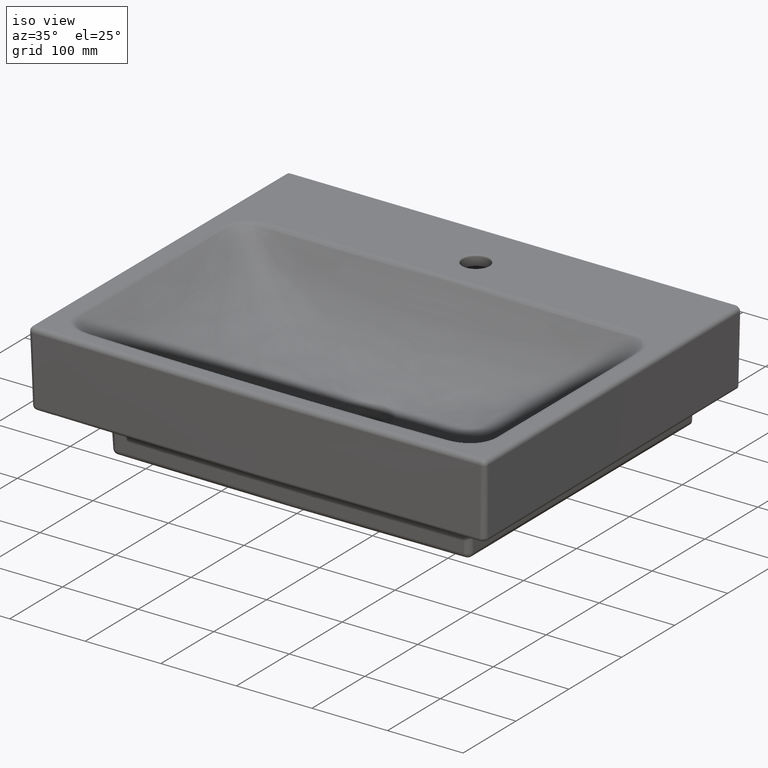
[diagram: clean part render]
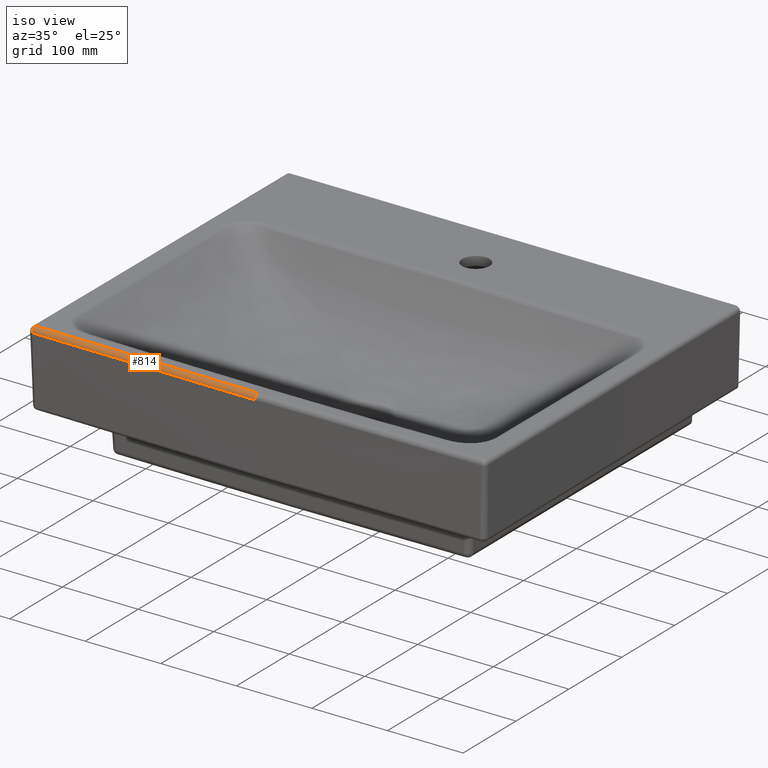
[diagram: same view with one face highlighted and labeled with its STEP entity id]
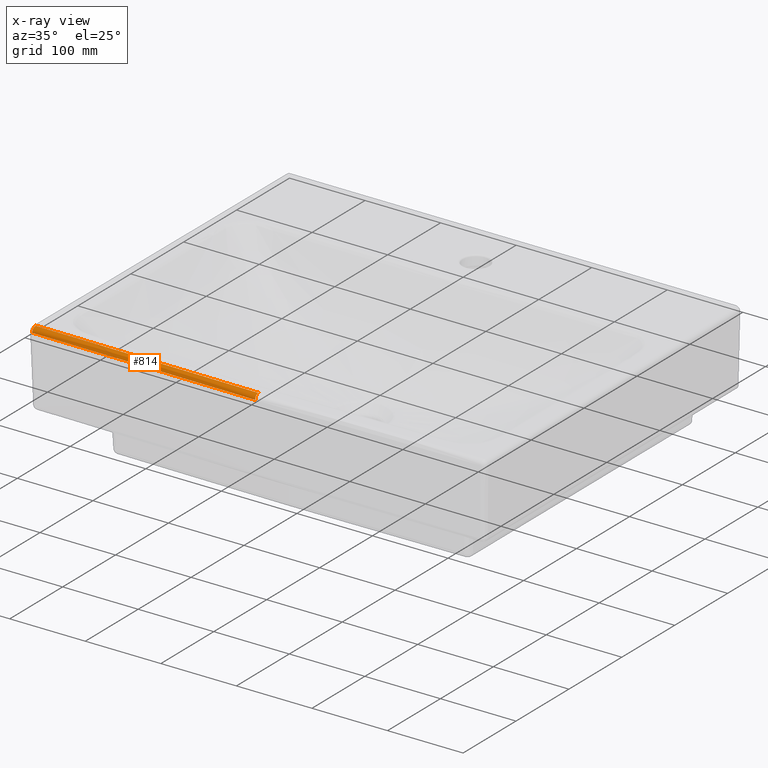
[diagram: x-ray of the same camera — body ghosted, the highlighted face saturated]
A machine part, iso view. The second image highlights one B-rep face of the part: STEP entity #814.
The next image is the same camera in x-ray: the body ghosted, the highlighted face saturated — about 0% of this face is hidden behind the body in this view.
In plain terms, the highlighted face is a freeform B-spline surface patch.
Its self-contained STEP definition (entity closure, byte-faithful):
#260=(
BOUNDED_SURFACE()
B_SPLINE_SURFACE(3,2,((#22848,#22849,#22850),(#22851,#22852,#22853),(#22854,
#22855,#22856),(#22857,#22858,#22859)),.UNSPECIFIED.,.F.,.F.,.F.)
B_SPLINE_SURFACE_WITH_KNOTS((4,4),(3,3),(0.,1.),(0.,1.),.UNSPECIFIED.)
GEOMETRIC_REPRESENTATION_ITEM()
RATIONAL_B_SPLINE_SURFACE(((1.,0.697790456929243,1.),(1.,0.697790456929243,
1.),(1.,0.697790459051666,1.),(1.,0.697790459051666,1.)))
REPRESENTATION_ITEM('')
SURFACE()
);
#529=CIRCLE('',#5241,6.);
#814=ADVANCED_FACE('',(#1166),#260,.T.);
#1166=FACE_OUTER_BOUND('',#1508,.T.);
#1508=EDGE_LOOP('',(#2794,#2795,#2796,#2797));
#2794=ORIENTED_EDGE('',*,*,#4393,.F.);
#2795=ORIENTED_EDGE('',*,*,#4372,.T.);
#2796=ORIENTED_EDGE('',*,*,#4131,.T.);
#2797=ORIENTED_EDGE('',*,*,#3878,.T.);
#3430=VERTEX_POINT('',#6451);
#3431=VERTEX_POINT('',#6456);
#3621=VERTEX_POINT('',#13070);
#3755=VERTEX_POINT('',#22094);
#3878=EDGE_CURVE('',#3431,#3430,#4631,.T.);
#4131=EDGE_CURVE('',#3621,#3431,#4786,.T.);
#4372=EDGE_CURVE('',#3755,#3621,#4959,.T.);
#4393=EDGE_CURVE('',#3755,#3430,#529,.T.);
#4631=B_SPLINE_CURVE_WITH_KNOTS('',3,(#6452,#6453,#6454,#6455),
 .UNSPECIFIED.,.F.,.F.,(4,4),(0.,1.),.UNSPECIFIED.);
#4786=B_SPLINE_CURVE_WITH_KNOTS('',3,(#13828,#13829,#13830,#13831,#13832,
#13833),.UNSPECIFIED.,.F.,.F.,(4,2,4),(0.,0.5,1.),.UNSPECIFIED.);
#4959=B_SPLINE_CURVE_WITH_KNOTS('',3,(#22090,#22091,#22092,#22093),
 .UNSPECIFIED.,.F.,.F.,(4,4),(0.,1.),.UNSPECIFIED.);
#5241=AXIS2_PLACEMENT_3D('',#22846,#5785,#5786);
#5785=DIRECTION('',(-0.999843399775483,0.0176967772604113,0.));
#5786=DIRECTION('',(-0.0176967772604157,-0.999843399775481,0.));
#6451=CARTESIAN_POINT('',(-296.469847334429,-470.235445222304,1.45853562971996));
#6452=CARTESIAN_POINT('',(-0.000139882988752233,-472.862885701117,1.45853562971996));
#6453=CARTESIAN_POINT('',(-98.831117405338,-472.860614766062,1.45853562971996));
#6454=CARTESIAN_POINT('',(-197.654349976072,-471.984434961117,1.45853562971996));
#6455=CARTESIAN_POINT('',(-296.469847334429,-470.235445222304,1.45853562971996));
#6456=CARTESIAN_POINT('',(0.,-472.862885702724,1.45853562971996));
#13070=CARTESIAN_POINT('',(0.,-478.860829654506,-4.69852610823782));
#13828=CARTESIAN_POINT('',(-0.000139455410120887,-478.860829651303,-4.69852610823902));
#13829=CARTESIAN_POINT('',(-0.000140415635844061,-478.902633629461,-3.10209707886177));
#13830=CARTESIAN_POINT('',(-0.000126000265012099,-478.275052183925,-1.49863884131649));
#13831=CARTESIAN_POINT('',(-7.48074267150095E-005,-476.046342577071,0.789195584382196));
#13832=CARTESIAN_POINT('',(-3.83664096586727E-005,-474.459861977467,1.45853562971996));
#13833=CARTESIAN_POINT('',(-1.68430990664187E-006,-472.862885704292,1.45853562971996));
#22090=CARTESIAN_POINT('',(-296.575991612524,-476.232449892441,-4.69852607335757));
#22091=CARTESIAN_POINT('',(-197.72692341478,-477.982033820645,-4.69852604767095));
#22092=CARTESIAN_POINT('',(-98.8645498727466,-478.858559599528,-4.6985260714715));
#22093=CARTESIAN_POINT('',(2.16255924435117E-006,-478.860829654555,-4.6985261082394));
#22094=CARTESIAN_POINT('',(-296.575991612524,-476.232449892441,-4.69852607335756));
#22846=CARTESIAN_POINT('',(-296.469847334429,-470.235445222304,-4.54146437028005));
#22848=CARTESIAN_POINT('',(1.77909664646461,-472.862832128319,1.45853562971986));
#22849=CARTESIAN_POINT('',(1.77960907855117,-479.022004441465,1.45853562971986));
#22850=CARTESIAN_POINT('',(1.77959566463876,-478.860776056136,-4.69852610890188));
#22851=CARTESIAN_POINT('',(-97.6450370491793,-472.8711040454,1.45853562971986));
#22852=CARTESIAN_POINT('',(-97.6810821083846,-479.030279353844,1.4585356218831));
#22853=CARTESIAN_POINT('',(-97.680138557655,-478.869050928422,-4.69852607701398));
#22854=CARTESIAN_POINT('',(-197.061374912332,-471.994930333555,1.45853562972009));
#22855=CARTESIAN_POINT('',(-197.133869840222,-478.153784145254,1.45853562822173));
#22856=CARTESIAN_POINT('',(-197.131972145533,-477.992564189579,-4.6985260559615));
#22857=CARTESIAN_POINT('',(-296.469847334432,-470.235445222304,1.45853562972009));
#22858=CARTESIAN_POINT('',(-296.578844834698,-476.39365299249,1.45853562972009));
#22859=CARTESIAN_POINT('',(-296.575991612527,-476.232449892441,-4.69852607335749));